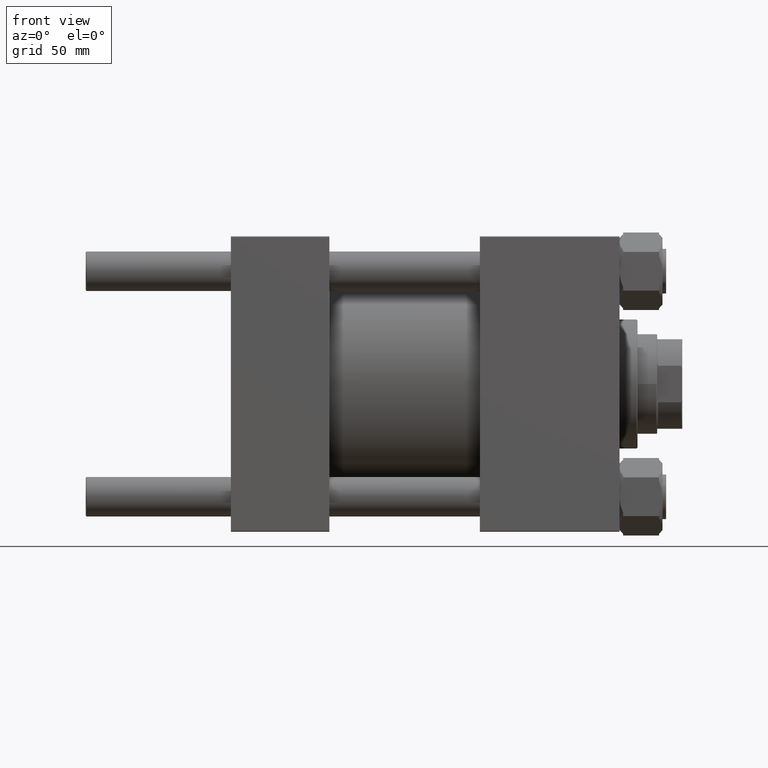
[diagram: clean part render]
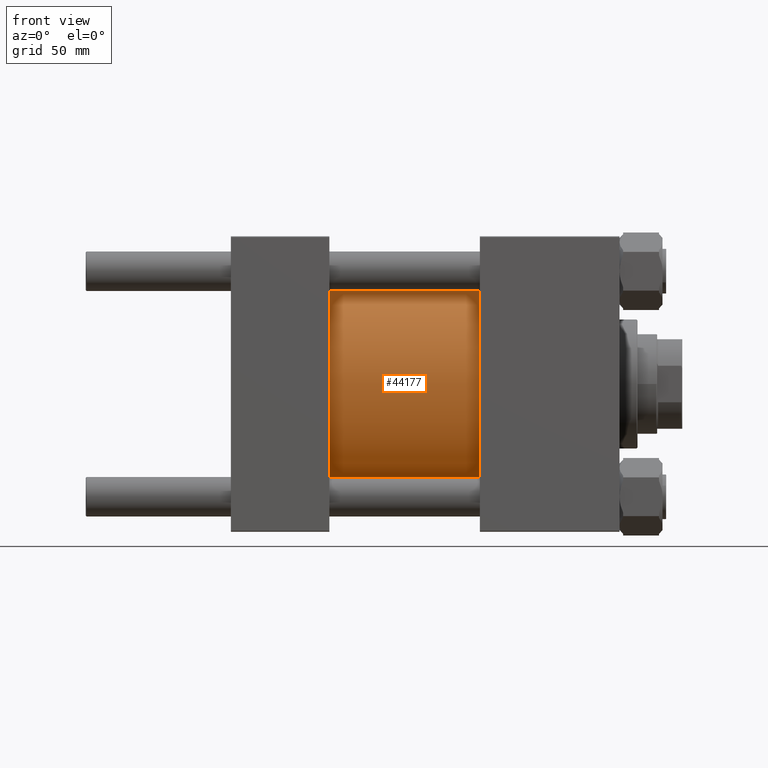
[diagram: same view with one face highlighted and labeled with its STEP entity id]
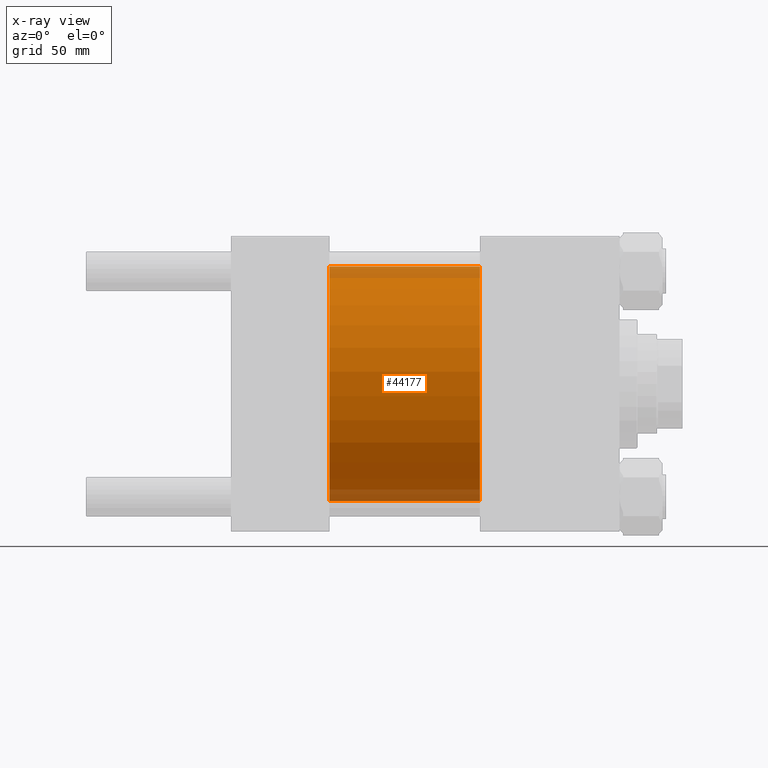
[diagram: x-ray of the same camera — body ghosted, the highlighted face saturated]
A machine part, front view. The second image highlights one B-rep face of the part: STEP entity #44177.
The next image is the same camera in x-ray: the body ghosted, the highlighted face saturated — about 10% of this face is hidden behind the body in this view.
In plain terms, the highlighted cylindrical surface (partial cylindrical patch) has radius 65.5 mm, axis along (-1, -0, -0).
Its self-contained STEP definition (entity closure, byte-faithful):
#126 = EDGE_CURVE ( 'NONE', #34326, #13238, #38051, .T. ) ;
#1679 = CARTESIAN_POINT ( 'NONE',  ( 139.0000000000000000, 0.000000000000000000, 65.50000000000001421 ) ) ;
#3380 = CARTESIAN_POINT ( 'NONE',  ( 139.0000000000000000, 0.000000000000000000, 0.000000000000000000 ) ) ;
#4255 = VECTOR ( 'NONE', #44164, 1000.000000000000000 ) ;
#4257 = DIRECTION ( 'NONE',  ( 1.000000000000000000, -0.000000000000000000, -0.000000000000000000 ) ) ;
#9006 = VECTOR ( 'NONE', #19744, 1000.000000000000000 ) ;
#12129 = CARTESIAN_POINT ( 'NONE',  ( 139.0000000000000000, 8.021436534415164826E-15, -65.50000000000001421 ) ) ;
#12825 = EDGE_CURVE ( 'NONE', #34326, #33567, #16933, .T. ) ;
#13238 = VERTEX_POINT ( 'NONE', #35390 ) ;
#14117 = FACE_OUTER_BOUND ( 'NONE', #34010, .T. ) ;
#16933 = LINE ( 'NONE', #1679, #4255 ) ;
#18911 = CARTESIAN_POINT ( 'NONE',  ( 139.0000000000000000, 0.000000000000000000, 0.000000000000000000 ) ) ;
#19744 = DIRECTION ( 'NONE',  ( -1.000000000000000000, -0.000000000000000000, -0.000000000000000000 ) ) ;
#19759 = AXIS2_PLACEMENT_3D ( 'NONE', #18911, #33694, #41831 ) ;
#20007 = DIRECTION ( 'NONE',  ( 0.000000000000000000, 0.000000000000000000, 1.000000000000000000 ) ) ;
#22484 = CYLINDRICAL_SURFACE ( 'NONE', #19759, 65.50000000000001421 ) ;
#22777 = CARTESIAN_POINT ( 'NONE',  ( 54.99999999999999289, 8.021436534415164826E-15, -65.50000000000001421 ) ) ;
#23313 = LINE ( 'NONE', #12129, #9006 ) ;
#24973 = VERTEX_POINT ( 'NONE', #22777 ) ;
#26673 = AXIS2_PLACEMENT_3D ( 'NONE', #3380, #46856, #31083 ) ;
#31015 = EDGE_CURVE ( 'NONE', #33567, #24973, #32484, .T. ) ;
#31037 = ORIENTED_EDGE ( 'NONE', *, *, #12825, .T. ) ;
#31083 = DIRECTION ( 'NONE',  ( 0.000000000000000000, 0.000000000000000000, -1.000000000000000000 ) ) ;
#32484 = CIRCLE ( 'NONE', #44662, 65.50000000000001421 ) ;
#33567 = VERTEX_POINT ( 'NONE', #45652 ) ;
#33694 = DIRECTION ( 'NONE',  ( -1.000000000000000000, -0.000000000000000000, -0.000000000000000000 ) ) ;
#34010 = EDGE_LOOP ( 'NONE', ( #50254, #42964, #31037, #49154 ) ) ;
#34326 = VERTEX_POINT ( 'NONE', #40885 ) ;
#35390 = CARTESIAN_POINT ( 'NONE',  ( 139.0000000000000000, 8.021436534415164826E-15, -65.50000000000001421 ) ) ;
#37581 = EDGE_CURVE ( 'NONE', #13238, #24973, #23313, .T. ) ;
#38051 = CIRCLE ( 'NONE', #26673, 65.50000000000001421 ) ;
#39087 = CARTESIAN_POINT ( 'NONE',  ( 54.99999999999999289, 0.000000000000000000, 0.000000000000000000 ) ) ;
#40885 = CARTESIAN_POINT ( 'NONE',  ( 139.0000000000000000, 0.000000000000000000, 65.50000000000001421 ) ) ;
#41831 = DIRECTION ( 'NONE',  ( 0.000000000000000000, 0.000000000000000000, 1.000000000000000000 ) ) ;
#42964 = ORIENTED_EDGE ( 'NONE', *, *, #126, .F. ) ;
#44164 = DIRECTION ( 'NONE',  ( -1.000000000000000000, -0.000000000000000000, -0.000000000000000000 ) ) ;
#44177 = ADVANCED_FACE ( 'NONE', ( #14117 ), #22484, .T. ) ;
#44662 = AXIS2_PLACEMENT_3D ( 'NONE', #39087, #4257, #20007 ) ;
#45652 = CARTESIAN_POINT ( 'NONE',  ( 54.99999999999999289, 0.000000000000000000, 65.50000000000001421 ) ) ;
#46856 = DIRECTION ( 'NONE',  ( 1.000000000000000000, 0.000000000000000000, 0.000000000000000000 ) ) ;
#49154 = ORIENTED_EDGE ( 'NONE', *, *, #31015, .T. ) ;
#50254 = ORIENTED_EDGE ( 'NONE', *, *, #37581, .F. ) ;